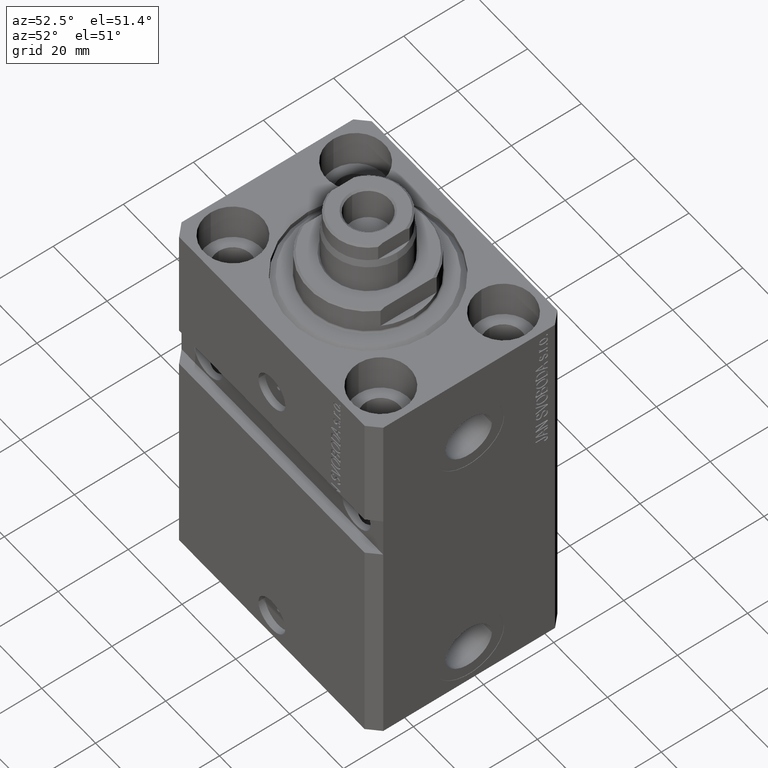
[diagram: clean part render]
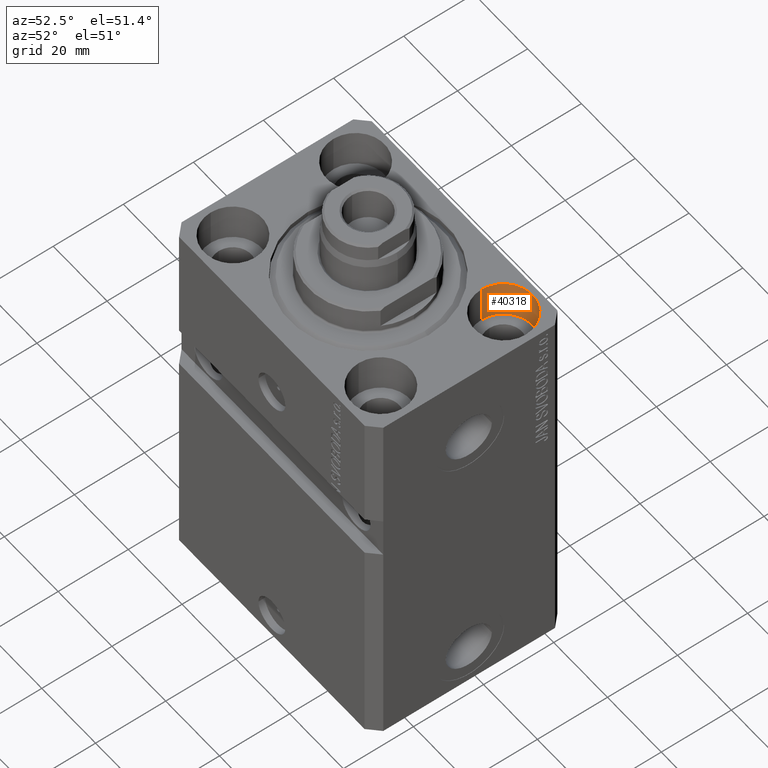
[diagram: same view with one face highlighted and labeled with its STEP entity id]
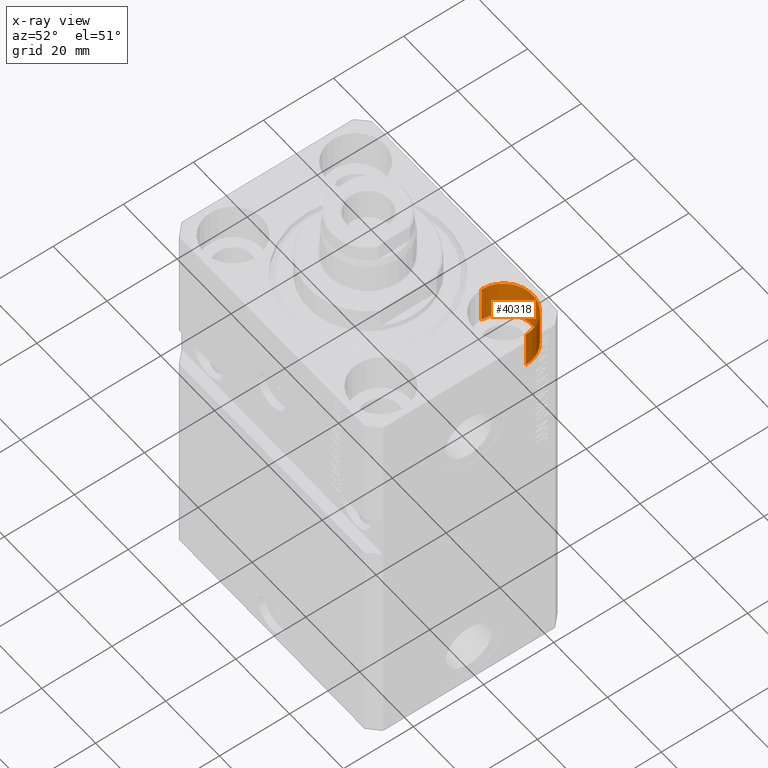
[diagram: x-ray of the same camera — body ghosted, the highlighted face saturated]
A machine part, auxiliary view. The second image highlights one B-rep face of the part: STEP entity #40318.
The next image is the same camera in x-ray: the body ghosted, the highlighted face saturated — about 0% of this face is hidden behind the body in this view.
In plain terms, the highlighted cylindrical surface (edge-blend (fillet) strip) has radius 8.25 mm, axis along (0, 0, 1).
Its self-contained STEP definition (entity closure, byte-faithful):
#3461 = DIRECTION ( 'NONE',  ( 0.000000000000000000, 0.000000000000000000, 1.000000000000000000 ) ) ;
#3610 = DIRECTION ( 'NONE',  ( 1.000000000000000000, 0.000000000000000000, 0.000000000000000000 ) ) ;
#4260 = VERTEX_POINT ( 'NONE', #23390 ) ;
#4267 = AXIS2_PLACEMENT_3D ( 'NONE', #14732, #32726, #3610 ) ;
#7863 = FACE_OUTER_BOUND ( 'NONE', #9688, .T. ) ;
#8369 = VERTEX_POINT ( 'NONE', #38403 ) ;
#8843 = CARTESIAN_POINT ( 'NONE',  ( 27.49999999999999645, 17.50000000000001066, 0.000000000000000000 ) ) ;
#9688 = EDGE_LOOP ( 'NONE', ( #39224, #33695, #13272, #33685 ) ) ;
#9774 = CARTESIAN_POINT ( 'NONE',  ( 19.25000000000000000, 17.50000000000001066, -11.00000000000000000 ) ) ;
#11180 = VECTOR ( 'NONE', #12795, 1000.000000000000000 ) ;
#11418 = CYLINDRICAL_SURFACE ( 'NONE', #4267, 8.249999999999992895 ) ;
#12795 = DIRECTION ( 'NONE',  ( -0.000000000000000000, -0.000000000000000000, 1.000000000000000000 ) ) ;
#13272 = ORIENTED_EDGE ( 'NONE', *, *, #46247, .T. ) ;
#14732 = CARTESIAN_POINT ( 'NONE',  ( 27.49999999999999645, 17.50000000000001066, -11.00000000000000000 ) ) ;
#16140 = DIRECTION ( 'NONE',  ( 0.000000000000000000, 0.000000000000000000, 1.000000000000000000 ) ) ;
#17603 = EDGE_CURVE ( 'NONE', #8369, #4260, #42520, .T. ) ;
#17695 = EDGE_CURVE ( 'NONE', #23306, #4260, #38639, .T. ) ;
#17902 = DIRECTION ( 'NONE',  ( 1.000000000000000000, 0.000000000000000000, 0.000000000000000000 ) ) ;
#19655 = CARTESIAN_POINT ( 'NONE',  ( 35.74999999999999289, 17.50000000000001066, -11.00000000000000000 ) ) ;
#21692 = CARTESIAN_POINT ( 'NONE',  ( 27.49999999999999645, 17.50000000000001066, -11.00000000000000000 ) ) ;
#22720 = LINE ( 'NONE', #19655, #11180 ) ;
#23306 = VERTEX_POINT ( 'NONE', #41117 ) ;
#23390 = CARTESIAN_POINT ( 'NONE',  ( 19.25000000000000000, 17.50000000000001066, 0.000000000000000000 ) ) ;
#24690 = EDGE_CURVE ( 'NONE', #39694, #23306, #35190, .T. ) ;
#32726 = DIRECTION ( 'NONE',  ( -0.000000000000000000, -0.000000000000000000, 1.000000000000000000 ) ) ;
#33685 = ORIENTED_EDGE ( 'NONE', *, *, #17603, .T. ) ;
#33695 = ORIENTED_EDGE ( 'NONE', *, *, #24690, .F. ) ;
#34962 = VECTOR ( 'NONE', #38414, 1000.000000000000000 ) ;
#35190 = CIRCLE ( 'NONE', #44267, 8.249999999999992895 ) ;
#36723 = CARTESIAN_POINT ( 'NONE',  ( 35.74999999999999289, 17.50000000000001066, -11.00000000000000000 ) ) ;
#37937 = DIRECTION ( 'NONE',  ( 1.000000000000000000, 0.000000000000000000, 0.000000000000000000 ) ) ;
#38403 = CARTESIAN_POINT ( 'NONE',  ( 35.74999999999999289, 17.50000000000001066, 0.000000000000000000 ) ) ;
#38414 = DIRECTION ( 'NONE',  ( -0.000000000000000000, -0.000000000000000000, 1.000000000000000000 ) ) ;
#38639 = LINE ( 'NONE', #9774, #34962 ) ;
#38752 = AXIS2_PLACEMENT_3D ( 'NONE', #8843, #16140, #37937 ) ;
#39224 = ORIENTED_EDGE ( 'NONE', *, *, #17695, .F. ) ;
#39694 = VERTEX_POINT ( 'NONE', #36723 ) ;
#40318 = ADVANCED_FACE ( 'NONE', ( #7863 ), #11418, .F. ) ;
#41117 = CARTESIAN_POINT ( 'NONE',  ( 19.25000000000000000, 17.50000000000001066, -11.00000000000000000 ) ) ;
#42520 = CIRCLE ( 'NONE', #38752, 8.249999999999992895 ) ;
#44267 = AXIS2_PLACEMENT_3D ( 'NONE', #21692, #3461, #17902 ) ;
#46247 = EDGE_CURVE ( 'NONE', #39694, #8369, #22720, .T. ) ;